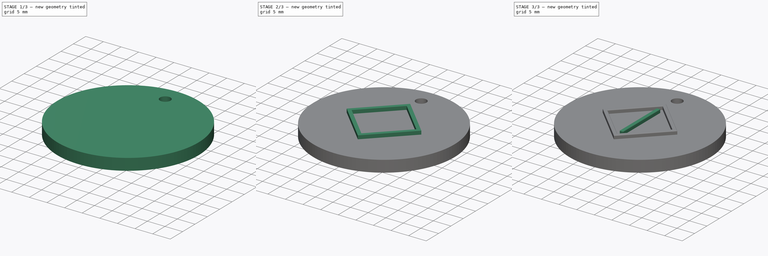
[diagram: build sequence overview — one tinted view per stage of 3, left to right]
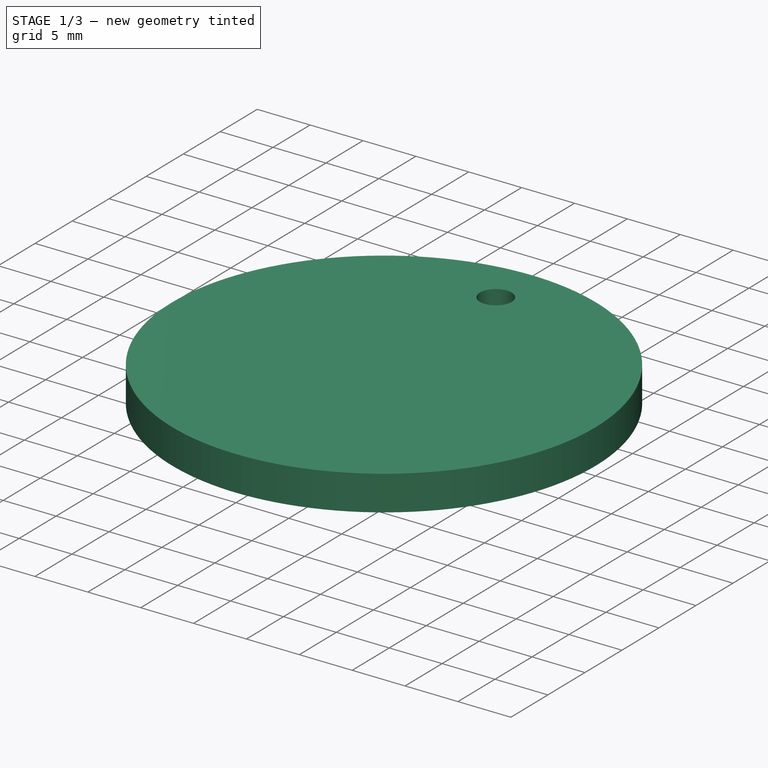
[diagram: stage 1 of 3 — iso view after this stage's code; geometry added in this stage tinted green]
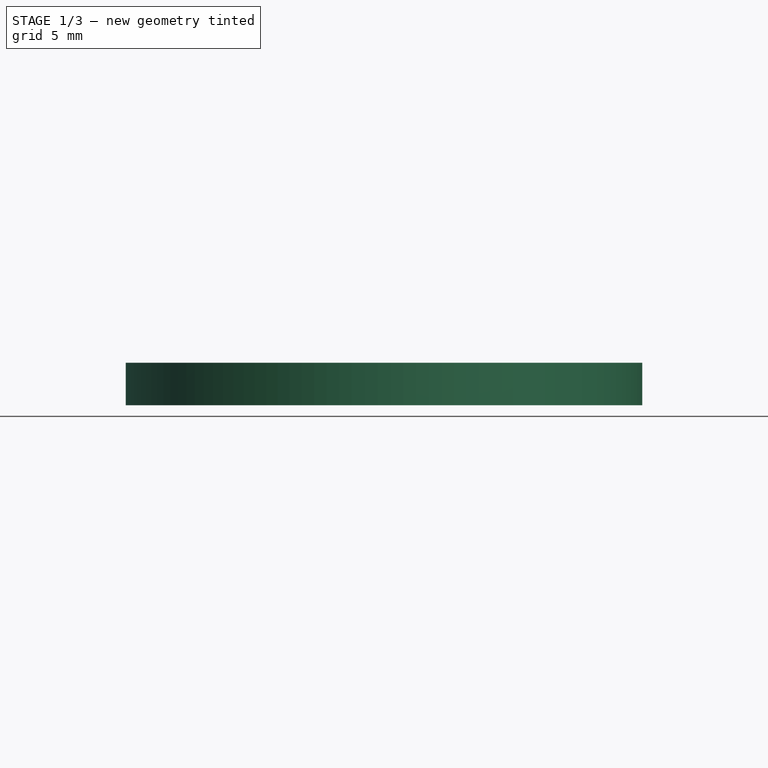
[diagram: stage 1 of 3 — front view after this stage's code; geometry added in this stage tinted green]
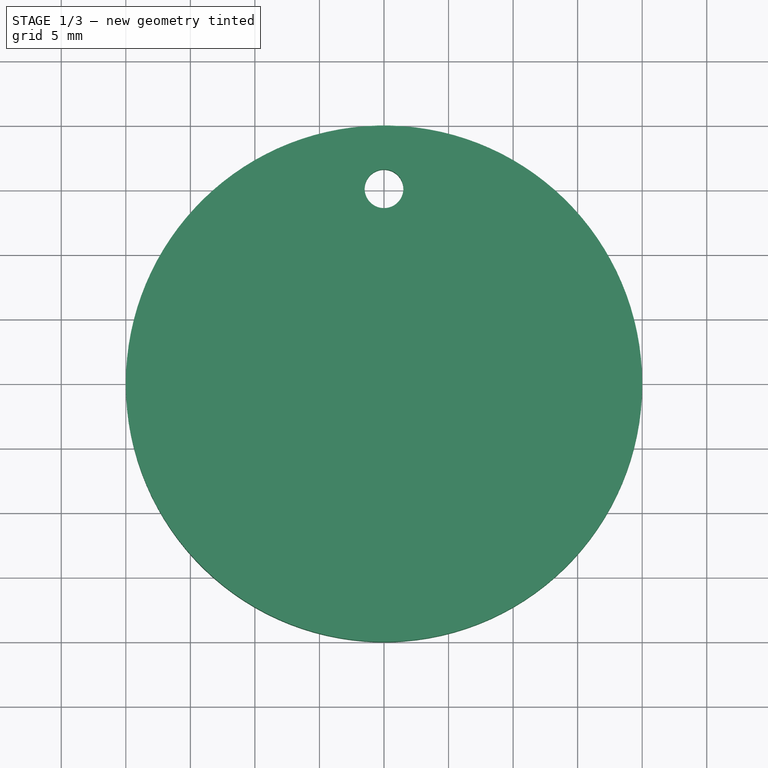
[diagram: stage 1 of 3 — top view after this stage's code; geometry added in this stage tinted green]
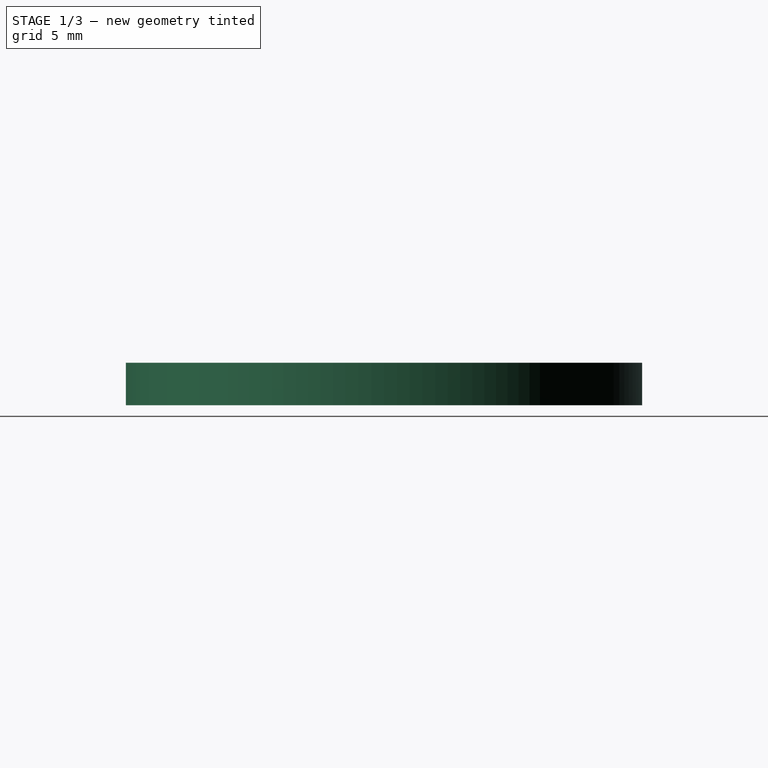
[diagram: stage 1 of 3 — right view after this stage's code; geometry added in this stage tinted green]
FCSTD DOCUMENT  (FreeCAD 0.16R4928 (Git))
Label: T5-ej1
License: CreativeCommons Attribution-ShareAlike
LicenseURL: http://creativecommons.org/licenses/by-sa/4.0/
objects: Sketcher::SketchObject×4, PartDesign::Pocket×2, Part::Feature×2, App::DocumentObjectGroup×2, PartDesign::Pad×2, Part::Cylinder×1, PartDesign::Fillet×1
note: 16 computed .brp shape members not serialized (recipe doc carries the construction recipe); baked Part::Feature solids carry a one-line shape summary decoded from their .brp

FEATURE [Part::Cylinder] Cylinder  label="casino-chip-main body"
  Angle = 360
  Height = 3.3
  Radius = 20
FEATURE [Sketcher::SketchObject] Sketch  label="hole-sketch"
  Placement = pos=(0,0,3.3) rot=(0,0,1;0rad)
  Support = -> Cylinder [Face2]
  sketch-geometry (1):
    g0: Circle CenterX=0 CenterY=15.1 CenterZ=0 NormalX=0 NormalY=0 NormalZ=1 Radius=1.5
  constraints (3):
    c: Radius(g0) = 1.5
    c: PointOnObject(g0,g-2)
    c: DistanceY(g-1,g0) = 15.1
FEATURE [PartDesign::Pocket] Pocket  label="casino-chip-key-chain"
  Length = 5
  Sketch = -> Sketch
  Type = 1
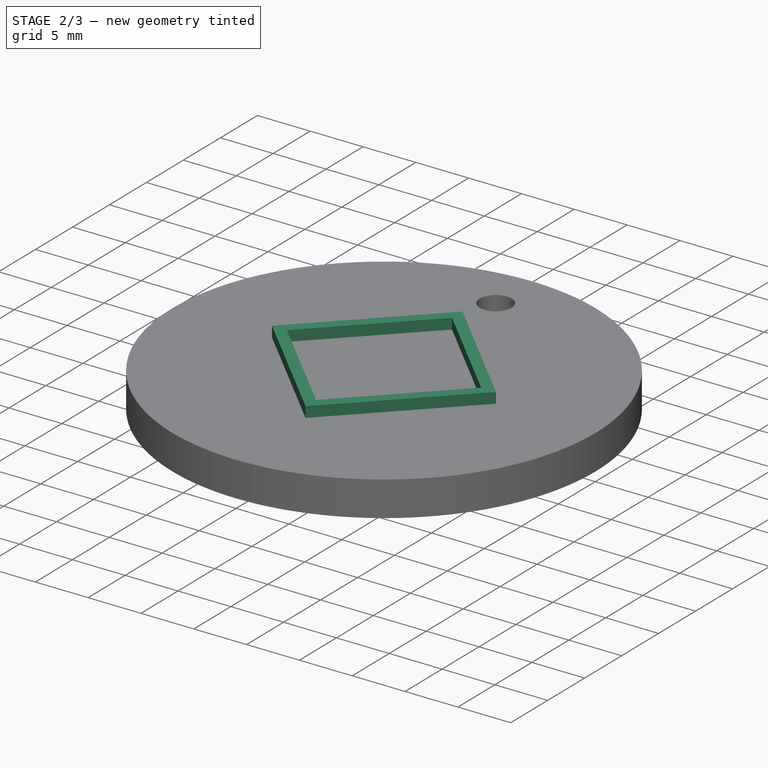
[diagram: stage 2 of 3 — iso view after this stage's code; geometry added in this stage tinted green]
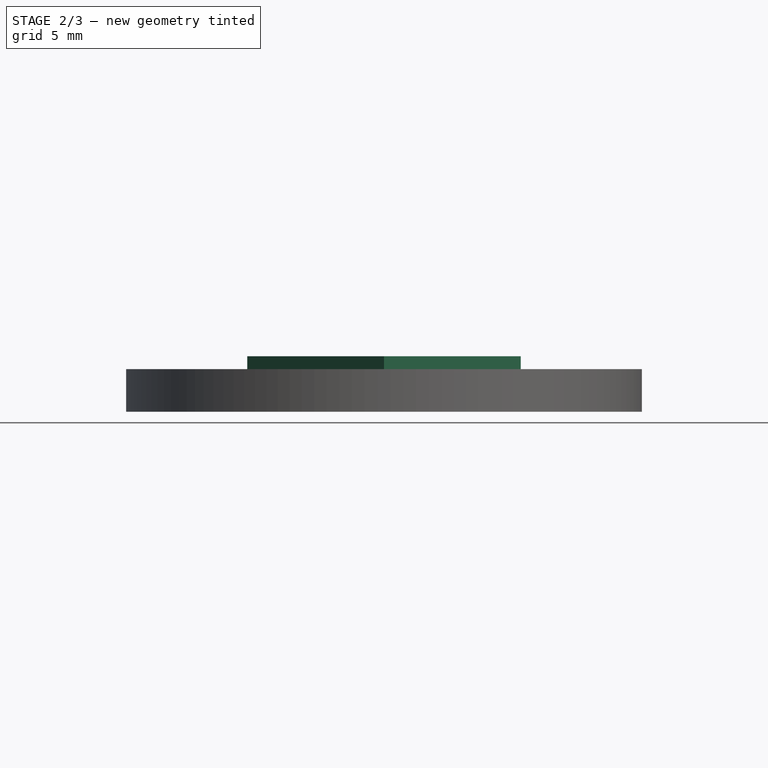
[diagram: stage 2 of 3 — front view after this stage's code; geometry added in this stage tinted green]
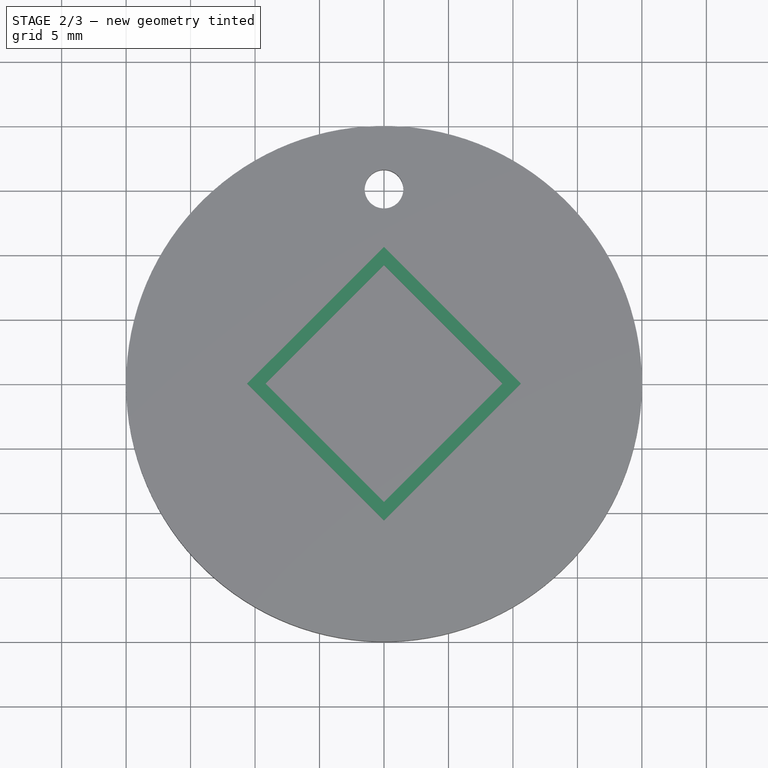
[diagram: stage 2 of 3 — top view after this stage's code; geometry added in this stage tinted green]
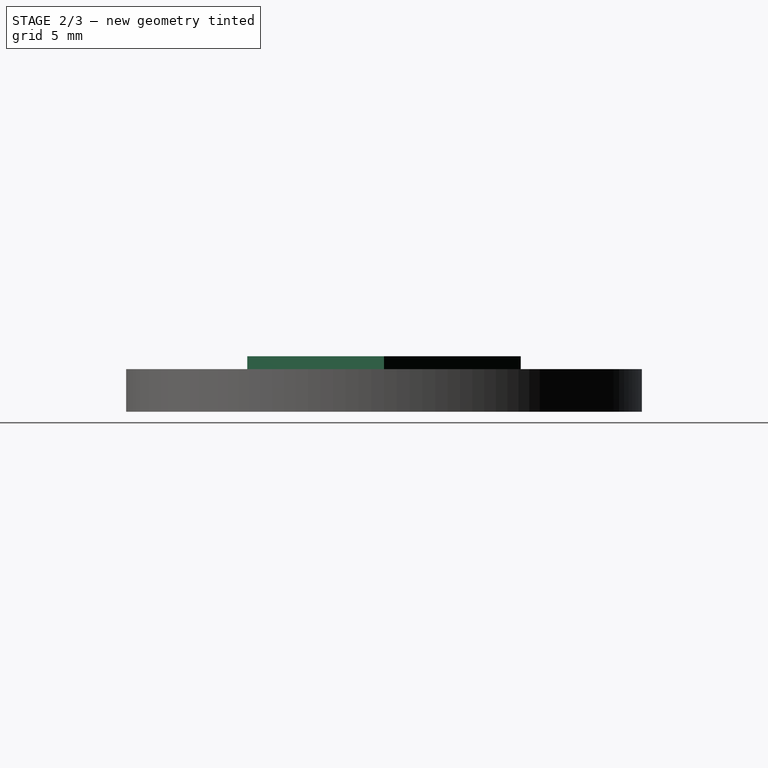
[diagram: stage 2 of 3 — right view after this stage's code; geometry added in this stage tinted green]
FEATURE [Part::Feature] Sweep  label="key-ring-model-1"
  Placement = pos=(-1.2,24.7546,1.6391) rot=(0.333333,0.881918,0.333333;1.69612rad)
  shape: bbox 3.31 x 27.02 x 26.33 mm, 4 faces (baked)
FEATURE [Part::Feature] Cut  label="key-model-1"
  Placement = pos=(-5.46976,31.0266,0) rot=(0,0,1;0.517888rad)
  shape: bbox 49.82 x 36.6 x 2.3 mm, 44 faces (baked)
FEATURE [App::DocumentObjectGroup] Group  label="Assembly"
  Group = -> [Sweep,Cut]
FEATURE [Sketcher::SketchObject] Sketch001
  Placement = pos=(0,0,3.3) rot=(0,0,1;0rad)
  Support = -> Pocket [Face2]
  sketch-geometry (4):
    g0: LineSegment StartX=0 StartY=-10.6066 StartZ=0 EndX=-10.6066 EndY=0 EndZ=0
    g1: LineSegment StartX=-10.6066 StartY=0 StartZ=0 EndX=0 EndY=10.6066 EndZ=0
    g2: LineSegment StartX=0 StartY=10.6066 StartZ=0 EndX=10.6066 EndY=0 EndZ=0
    g3: LineSegment StartX=10.6066 StartY=0 StartZ=0 EndX=0 EndY=-10.6066 EndZ=0
  constraints (13):
    c: Coincident(g0,g1)
    c: Coincident(g1,g2)
    c: Coincident(g2,g3)
    c: Coincident(g3,g0)
    c: PointOnObject(g0,g-1)
    c: PointOnObject(g0,g-2)
    c: PointOnObject(g1,g-2)
    c: PointOnObject(g2,g-1)
    c: Parallel(g0,g2)
    c: Parallel(g1,g3)
    c: Equal(g1,g2)
    c: Angle(g1,g2) = 1.5708
    c: Distance(g3) = 15
FEATURE [PartDesign::Pad] Pad
  Length = 1
  Length2 = 100
  Sketch = -> Sketch001
  Type = 0
FEATURE [Sketcher::SketchObject] Sketch002
  ExternalGeometry = -> [Pad]
  Placement = pos=(0,0,4.3) rot=(0,0,1;0rad)
  Support = -> Pad [Face9]
  sketch-geometry (4):
    g0: LineSegment StartX=-9.19239 StartY=0 StartZ=0 EndX=0 EndY=9.19239 EndZ=0
    g1: LineSegment StartX=0 StartY=9.19239 StartZ=0 EndX=9.19239 EndY=0 EndZ=0
    g2: LineSegment StartX=9.19239 StartY=0 StartZ=0 EndX=0 EndY=-9.19239 EndZ=0
    g3: LineSegment StartX=0 StartY=-9.19239 StartZ=0 EndX=-9.19239 EndY=0 EndZ=0
  constraints (12):
    c: Coincident(g0,g1)
    c: Coincident(g1,g2)
    c: Coincident(g2,g3)
    c: Coincident(g3,g0)
    c: Parallel(g0,g-3)
    c: Parallel(g1,g-4)
    c: Parallel(g-5,g2)
    c: Parallel(g-6,g3)
    c: PointOnObject(g0,g-1)
    c: PointOnObject(g0,g-2)
    c: PointOnObject(g1,g-1)
    c: Distance(g2,g-5) = 1
FEATURE [PartDesign::Pocket] Pocket001
  Length = 0
  Sketch = -> Sketch002
  Type = 3
  UpToFace = -> Pad [Face2]
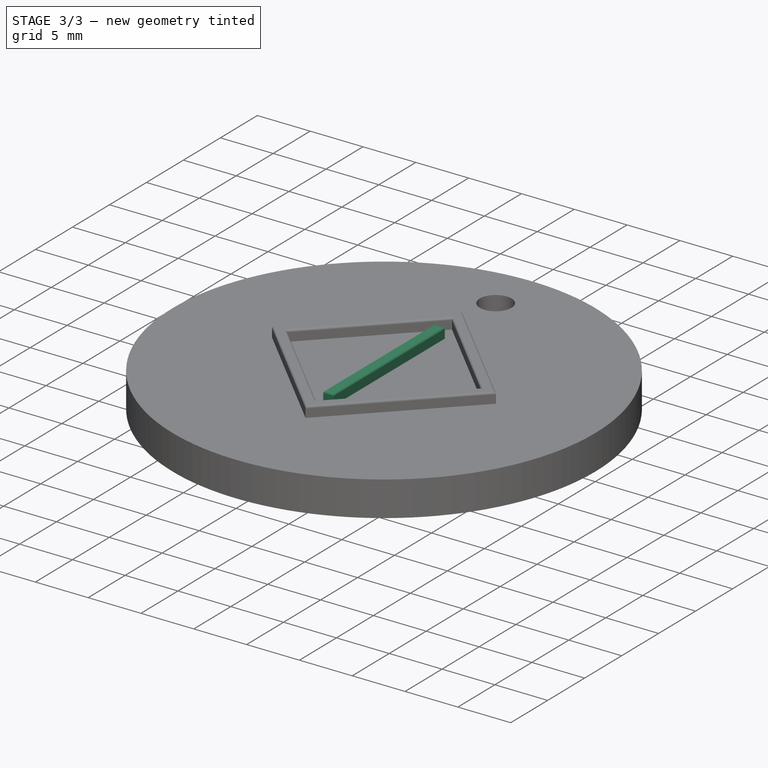
[diagram: stage 3 of 3 — iso view after this stage's code; geometry added in this stage tinted green]
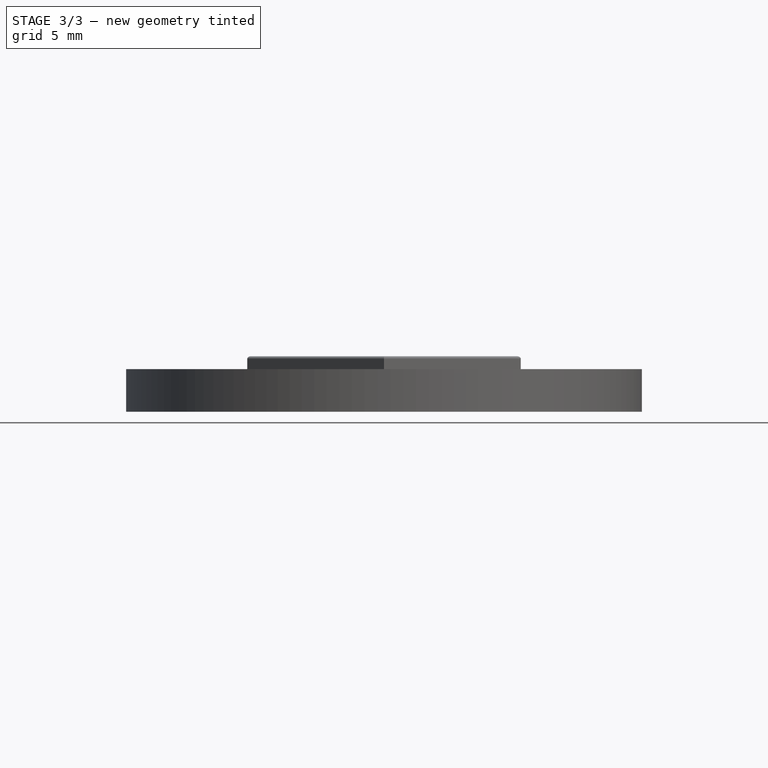
[diagram: stage 3 of 3 — front view after this stage's code; geometry added in this stage tinted green]
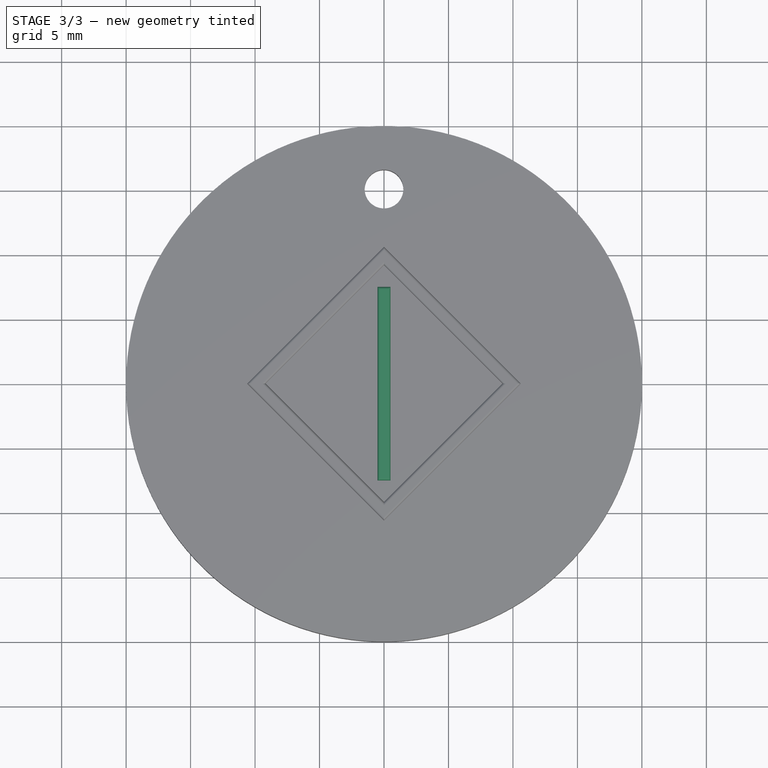
[diagram: stage 3 of 3 — top view after this stage's code; geometry added in this stage tinted green]
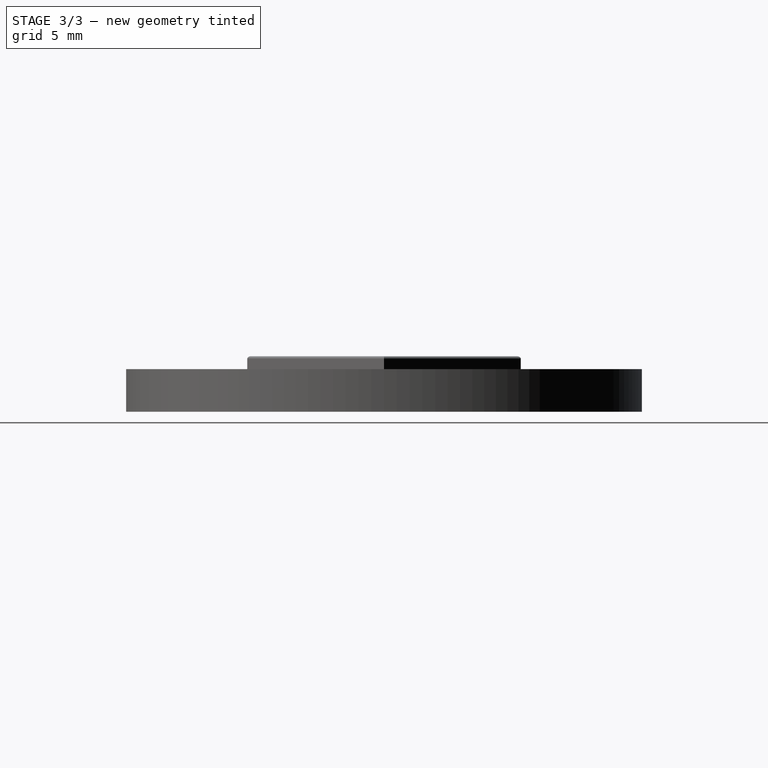
[diagram: stage 3 of 3 — right view after this stage's code; geometry added in this stage tinted green]
FEATURE [Sketcher::SketchObject] Sketch003
  Placement = pos=(0,0,3.3) rot=(0,0,1;0rad)
  Support = -> Pocket001 [Face14]
  sketch-geometry (4):
    g0: LineSegment StartX=-0.5 StartY=7.5 StartZ=0 EndX=0.5 EndY=7.5 EndZ=0
    g1: LineSegment StartX=0.5 StartY=7.5 StartZ=0 EndX=0.5 EndY=-7.5 EndZ=0
    g2: LineSegment StartX=0.5 StartY=-7.5 StartZ=0 EndX=-0.5 EndY=-7.5 EndZ=0
    g3: LineSegment StartX=-0.5 StartY=-7.5 StartZ=0 EndX=-0.5 EndY=7.5 EndZ=0
  constraints (12):
    c: Coincident(g0,g1)
    c: Coincident(g1,g2)
    c: Coincident(g2,g3)
    c: Coincident(g3,g0)
    c: Horizontal(g0)
    c: Horizontal(g2)
    c: Vertical(g1)
    c: Vertical(g3)
    c: DistanceX(g0) = 1
    c: Symmetric(g1,g2,g-2)
    c: Symmetric(g0,g1,g-1)
    c: DistanceY(g3) = 15
FEATURE [PartDesign::Pad] Pad001
  Length = 1
  Length2 = 100
  Sketch = -> Sketch003
  Type = 0
FEATURE [PartDesign::Fillet] Fillet
  Base = -> Pad001 [Edge27,Edge28,Edge26,Edge25,Edge22,Edge17,Edge20,Edge24,Edge4,Edge3,Edge2,Edge1]
  Radius = 0.2
FEATURE [App::DocumentObjectGroup] Group001  label="Casino-chip-src"
  Group = -> [Cylinder,Pocket,Pad,Pocket001,Pad001,Fillet]
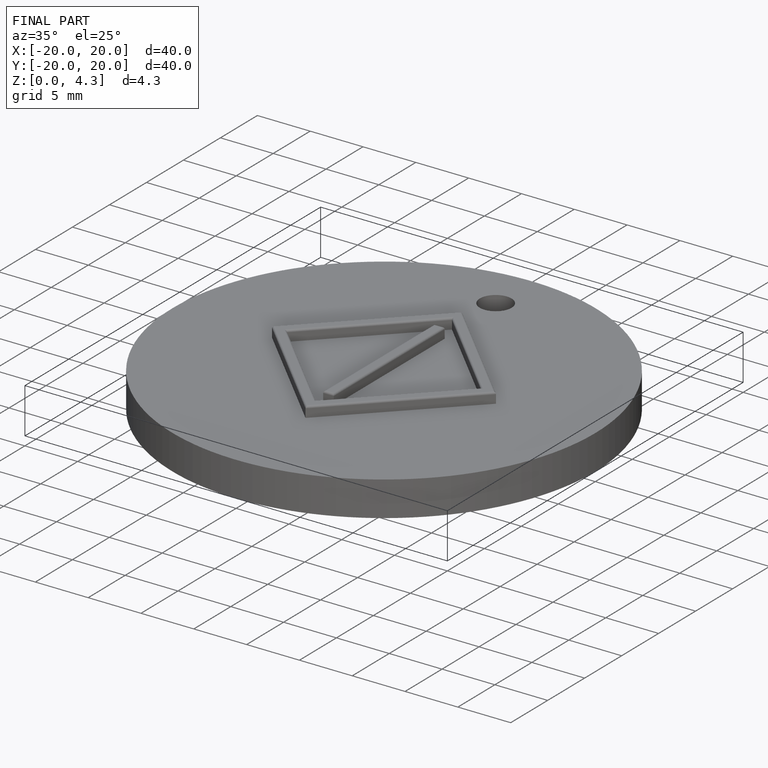
[diagram: finished part — iso view with bounding-box wireframe]
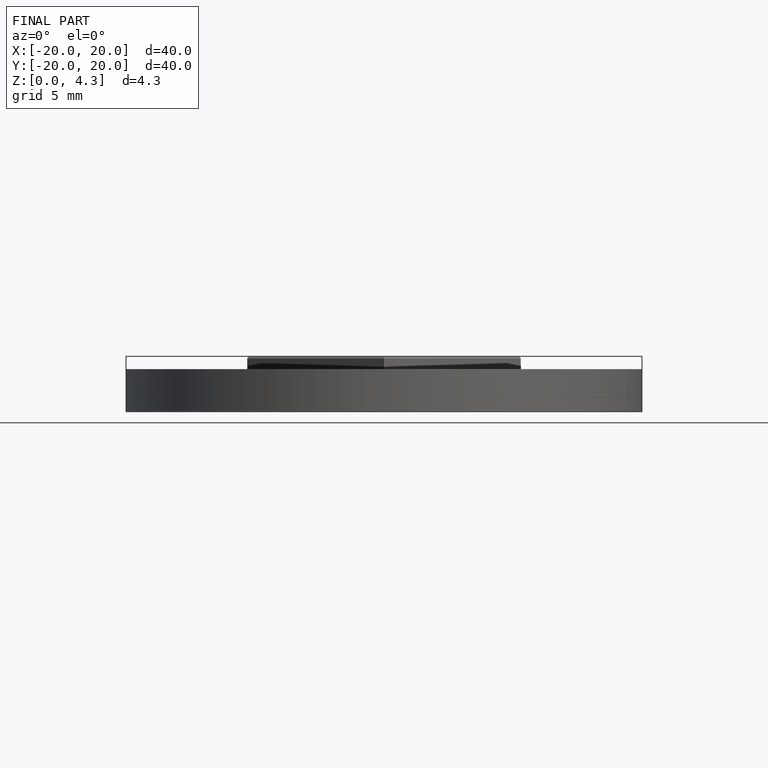
[diagram: finished part — front view with bounding-box wireframe]
